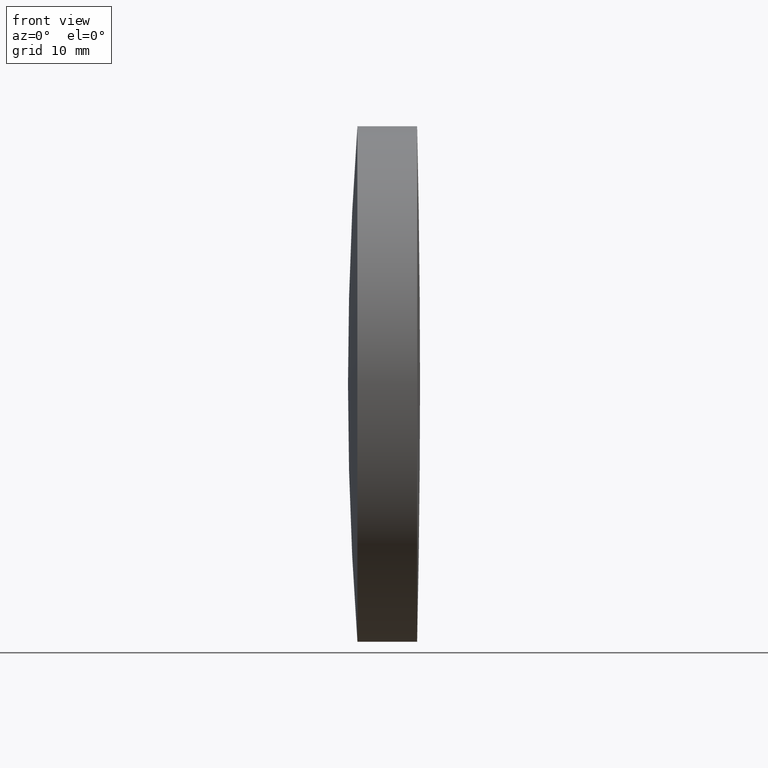
[diagram: clean part render]
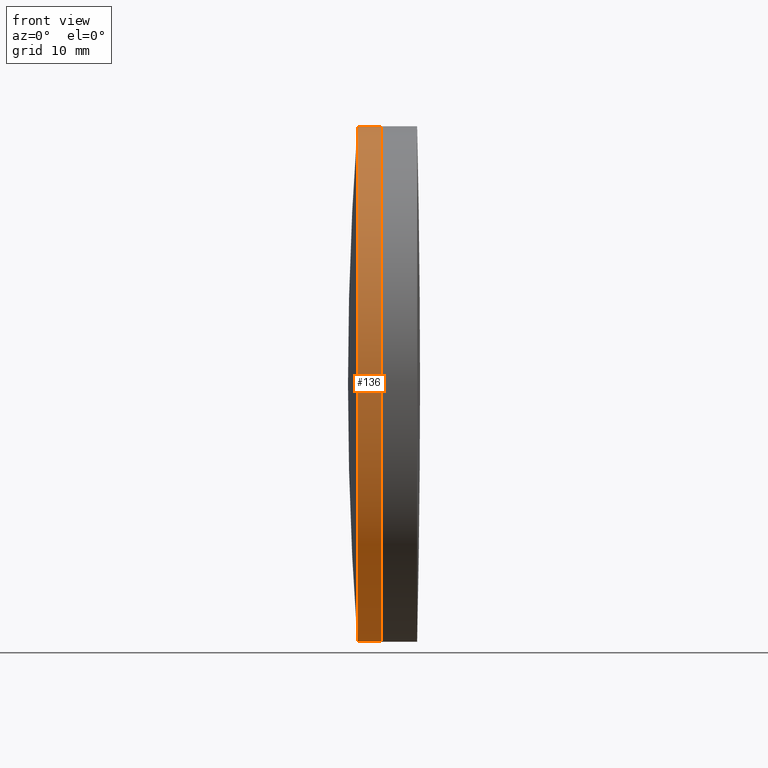
[diagram: same view with one face highlighted and labeled with its STEP entity id]
A machine part, front view. The second image highlights one B-rep face of the part: STEP entity #136.
In plain terms, the highlighted cylindrical surface (partial cylindrical patch) has radius 25.4 mm, axis along (-1, -0, -0).
Its self-contained STEP definition (entity closure, byte-faithful):
#5 = AXIS2_PLACEMENT_3D ( 'NONE', #252, #202, #262 ) ;
#9 = FACE_OUTER_BOUND ( 'NONE', #247, .T. ) ;
#16 = DIRECTION ( 'NONE',  ( -1.000000000000000000, -0.0000000000000000000, -0.0000000000000000000 ) ) ;
#29 = ORIENTED_EDGE ( 'NONE', *, *, #279, .T. ) ;
#40 = EDGE_CURVE ( 'NONE', #231, #59, #86, .T. ) ;
#45 = CIRCLE ( 'NONE', #5, 25.39999999999999100 ) ;
#50 = EDGE_CURVE ( 'NONE', #168, #297, #187, .T. ) ;
#55 = CARTESIAN_POINT ( 'NONE',  ( 124.5233095260452400, 0.0000000000000000000, 0.0000000000000000000 ) ) ;
#59 = VERTEX_POINT ( 'NONE', #345 ) ;
#61 = DIRECTION ( 'NONE',  ( -1.000000000000000000, -0.0000000000000000000, -0.0000000000000000000 ) ) ;
#78 = CARTESIAN_POINT ( 'NONE',  ( 715.9340020172002100, 0.0000000000000000000, 25.39999999999999100 ) ) ;
#80 = CARTESIAN_POINT ( 'NONE',  ( 715.9340020172002100, 3.110602869834276100E-015, -25.39999999999999100 ) ) ;
#83 = CARTESIAN_POINT ( 'NONE',  ( 124.5233095260452400, 0.0000000000000000000, 25.39999999999999100 ) ) ;
#85 = CYLINDRICAL_SURFACE ( 'NONE', #192, 25.39999999999999100 ) ;
#86 = LINE ( 'NONE', #250, #125 ) ;
#99 = VECTOR ( 'NONE', #16, 1000.000000000000000 ) ;
#122 = CARTESIAN_POINT ( 'NONE',  ( 713.6122408875742200, 0.0000000000000000000, 0.0000000000000000000 ) ) ;
#125 = VECTOR ( 'NONE', #61, 1000.000000000000000 ) ;
#136 = ADVANCED_FACE ( 'NONE', ( #9 ), #85, .T. ) ;
#144 = AXIS2_PLACEMENT_3D ( 'NONE', #122, #183, #160 ) ;
#149 = ORIENTED_EDGE ( 'NONE', *, *, #40, .F. ) ;
#160 = DIRECTION ( 'NONE',  ( 0.0000000000000000000, 0.0000000000000000000, 1.000000000000000000 ) ) ;
#168 = VERTEX_POINT ( 'NONE', #78 ) ;
#183 = DIRECTION ( 'NONE',  ( -1.000000000000000000, -0.0000000000000000000, -0.0000000000000000000 ) ) ;
#187 = LINE ( 'NONE', #83, #99 ) ;
#192 = AXIS2_PLACEMENT_3D ( 'NONE', #55, #251, #203 ) ;
#202 = DIRECTION ( 'NONE',  ( -1.000000000000000000, -0.0000000000000000000, -0.0000000000000000000 ) ) ;
#203 = DIRECTION ( 'NONE',  ( 0.0000000000000000000, 0.0000000000000000000, 1.000000000000000000 ) ) ;
#231 = VERTEX_POINT ( 'NONE', #80 ) ;
#238 = CIRCLE ( 'NONE', #144, 25.39999999999999100 ) ;
#247 = EDGE_LOOP ( 'NONE', ( #149, #29, #292, #286 ) ) ;
#250 = CARTESIAN_POINT ( 'NONE',  ( 124.5233095260452400, 3.110602869834276100E-015, -25.39999999999999100 ) ) ;
#251 = DIRECTION ( 'NONE',  ( -1.000000000000000000, -0.0000000000000000000, -0.0000000000000000000 ) ) ;
#252 = CARTESIAN_POINT ( 'NONE',  ( 715.9340020172002100, 0.0000000000000000000, 0.0000000000000000000 ) ) ;
#262 = DIRECTION ( 'NONE',  ( 0.0000000000000000000, 0.0000000000000000000, 1.000000000000000000 ) ) ;
#279 = EDGE_CURVE ( 'NONE', #231, #168, #45, .T. ) ;
#286 = ORIENTED_EDGE ( 'NONE', *, *, #296, .F. ) ;
#292 = ORIENTED_EDGE ( 'NONE', *, *, #50, .T. ) ;
#296 = EDGE_CURVE ( 'NONE', #59, #297, #238, .T. ) ;
#297 = VERTEX_POINT ( 'NONE', #305 ) ;
#305 = CARTESIAN_POINT ( 'NONE',  ( 713.6122408875742200, 0.0000000000000000000, 25.39999999999991300 ) ) ;
#345 = CARTESIAN_POINT ( 'NONE',  ( 713.6122408875742200, 3.110602869834266600E-015, -25.39999999999991700 ) ) ;